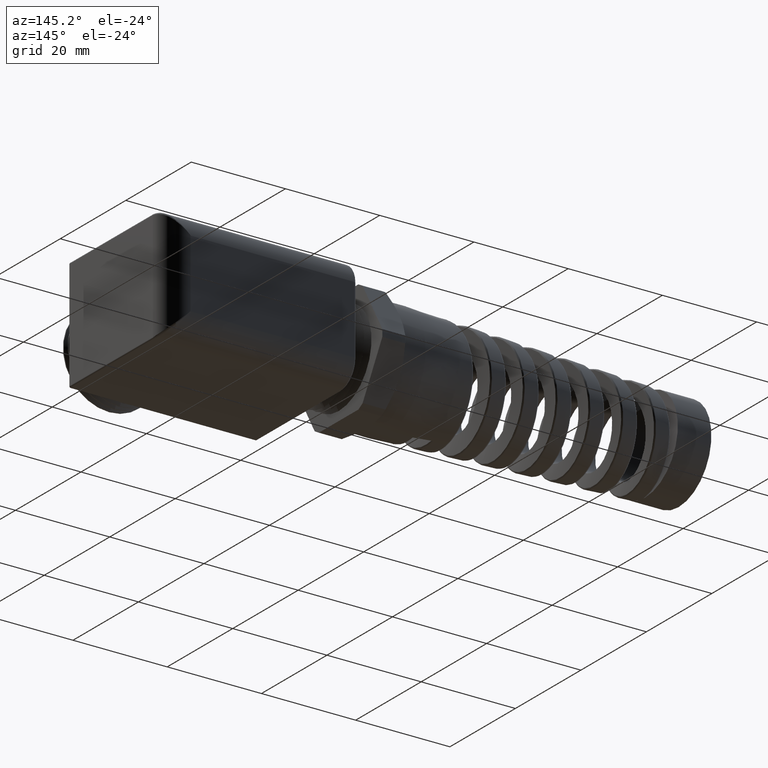
[diagram: clean part render]
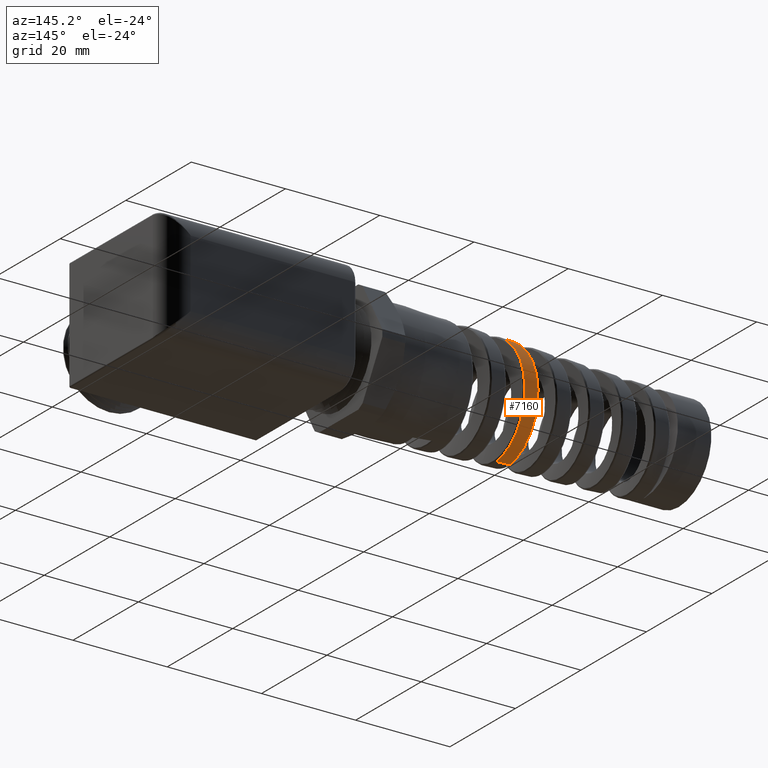
[diagram: same view with one face highlighted and labeled with its STEP entity id]
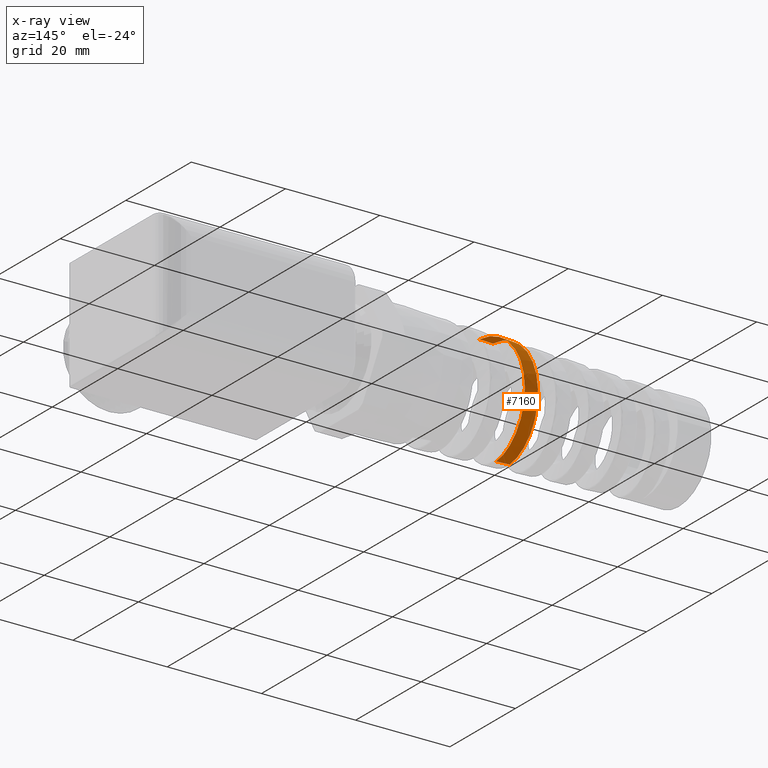
[diagram: x-ray of the same camera — body ghosted, the highlighted face saturated]
A machine part, auxiliary view. The second image highlights one B-rep face of the part: STEP entity #7160.
The next image is the same camera in x-ray: the body ghosted, the highlighted face saturated — about 0% of this face is hidden behind the body in this view.
In plain terms, the highlighted conical surface has half-angle 2 deg.
Its self-contained STEP definition (entity closure, byte-faithful):
#1283 = CARTESIAN_POINT ( 'NONE',  ( -1.588092709410913600, 5.378720768999652000E-013, -0.4380093376615970500 ) ) ;
#1292 = DIRECTION ( 'NONE',  ( 0.9993908270190959800, 0.0000000000000000000, -0.03489949670249403700 ) ) ;
#1294 = VECTOR ( 'NONE', #1292, 39.37007874015748100 ) ;
#1295 = CARTESIAN_POINT ( 'NONE',  ( -0.6720000000000001500, 0.0000000000000000000, -0.4699999999999998600 ) ) ;
#1296 = LINE ( 'NONE', #1295, #1294 ) ;
#1460 = DIRECTION ( 'NONE',  ( 0.9993908270190959800, 4.273955692856292900E-018, 0.03489949670249403700 ) ) ;
#1461 = VECTOR ( 'NONE', #1460, 39.37007874015748100 ) ;
#1462 = CARTESIAN_POINT ( 'NONE',  ( -0.6720000000000001500, 5.755839955992558400E-017, 0.4699999999999998600 ) ) ;
#1463 = LINE ( 'NONE', #1462, #1461 ) ;
#1515 = CARTESIAN_POINT ( 'NONE',  ( -1.463712311807373400, 0.1552565178672250800, 0.4144636440341080700 ) ) ;
#1516 = CARTESIAN_POINT ( 'NONE',  ( -1.462238519533112000, 0.1415092352155226900, 0.4194108301463539400 ) ) ;
#1517 = CARTESIAN_POINT ( 'NONE',  ( -1.459319529552696800, 0.1138700300372548900, 0.4278482514460242900 ) ) ;
#1518 = CARTESIAN_POINT ( 'NONE',  ( -1.457868361574803400, 0.09992558755380559500, 0.4313668249424997800 ) ) ;
#1519 = CARTESIAN_POINT ( 'NONE',  ( -1.453519321075634800, 0.05772761468592203800, 0.4398659536071123400 ) ) ;
#1520 = CARTESIAN_POINT ( 'NONE',  ( -1.450624854838777500, 0.02908960965713431100, 0.4428098209236349100 ) ) ;
#1521 = CARTESIAN_POINT ( 'NONE',  ( -1.447689744863806900, 3.730802169768455900E-016, 0.4429123172225035700 ) ) ;
#1522 = B_SPLINE_CURVE_WITH_KNOTS ( 'NONE', 3,
 ( #1521, #1520, #1519, #1518, #1517, #1516, #1515, #1589, #1587, #1586, #1585, #1584, #1583, #1582, #1581, #1580, #1579, #1578, #1577, #1576, #1575, #1574, #1573, #1572, #1571, #1570, #1568, #1567, #1566, #1565, #1564, #1563, #1562, #1561, #1560, #1559, #1558, #1557, #1556, #1555, #1554, #1553, #1552, #1551, #1550, #1549, #1548, #1547, #1546 ),
 .UNSPECIFIED., .F., .F.,
 ( 4, 2, 2, 2, 2, 2, 2, 2, 1, 2, 2, 2, 2, 2, 2, 2, 2, 2, 2, 2, 2, 2, 2, 2, 4 ),
 ( 0.1109009939866371600, 0.1131270918891602200, 0.1142401408404217400, 0.1153531897916832600, 0.1175792876942063100, 0.1198053855967293500, 0.1220314834992524000, 0.1231445324505139200, 0.1242575814017754400, 0.1253706303530369700, 0.1264836793042984900, 0.1287097772068215300, 0.1298228261580830500, 0.1309358751093445700, 0.1331619730118676100, 0.1342750219631291300, 0.1353880709143906500, 0.1376141688169136800, 0.1387272177681752300, 0.1398402667194367500, 0.1409533156706982700, 0.1420663646219597900, 0.1442924625244828300, 0.1454055114757443500, 0.1465185604270058700 ),
 .UNSPECIFIED. ) ;
#1523 = CARTESIAN_POINT ( 'NONE',  ( -1.701181390279759200, 1.537446131535684400E-014, -0.4340601939048510700 ) ) ;
#1534 = CARTESIAN_POINT ( 'NONE',  ( -1.560801279104852900, 6.419263063356603100E-013, 0.4389623754084148700 ) ) ;
#1535 = DIRECTION ( 'NONE',  ( 0.0000000000000000000, 0.0000000000000000000, -1.000000000000000000 ) ) ;
#1536 = DIRECTION ( 'NONE',  ( 1.000000000000000000, 0.0000000000000000000, 0.0000000000000000000 ) ) ;
#1537 = CARTESIAN_POINT ( 'NONE',  ( -0.6720000000000001500, 0.0000000000000000000, 0.0000000000000000000 ) ) ;
#1538 = AXIS2_PLACEMENT_3D ( 'NONE', #1537, #1536, #1535 ) ;
#1539 = CONICAL_SURFACE ( 'NONE', #1538, 0.4699999999999998600, 0.03490658503987965200 ) ;
#1540 = FACE_OUTER_BOUND ( 'NONE', #7159, .T. ) ;
#1546 = CARTESIAN_POINT ( 'NONE',  ( -1.588092709410913600, 5.378720768999652000E-013, -0.4380093376615970500 ) ) ;
#1547 = CARTESIAN_POINT ( 'NONE',  ( -1.586624911403534200, 0.01438895759954392900, -0.4380605942974556400 ) ) ;
#1548 = CARTESIAN_POINT ( 'NONE',  ( -1.585148241024467700, 0.02887321569402921000, -0.4374010894678137000 ) ) ;
#1549 = CARTESIAN_POINT ( 'NONE',  ( -1.582185861028949600, 0.05780023198654163400, -0.4346299157970378600 ) ) ;
#1550 = CARTESIAN_POINT ( 'NONE',  ( -1.580716784236192000, 0.07207995042872245000, -0.4325377556411199600 ) ) ;
#1551 = CARTESIAN_POINT ( 'NONE',  ( -1.576322670466081100, 0.1143834779095357500, -0.4242110398472936400 ) ) ;
#1552 = CARTESIAN_POINT ( 'NONE',  ( -1.573410670783935900, 0.1418766880781460700, -0.4159454806918621000 ) ) ;
#1553 = CARTESIAN_POINT ( 'NONE',  ( -1.568983381905114700, 0.1820221026006242900, -0.3993928776564845100 ) ) ;
#1554 = CARTESIAN_POINT ( 'NONE',  ( -1.567497025030396300, 0.1952221474768941800, -0.3931654469133575300 ) ) ;
#1555 = CARTESIAN_POINT ( 'NONE',  ( -1.564557322980199200, 0.2206709152139491300, -0.3795855503614689000 ) ) ;
#1556 = CARTESIAN_POINT ( 'NONE',  ( -1.563096143585945200, 0.2329962765656624100, -0.3722044125787523100 ) ) ;
#1557 = CARTESIAN_POINT ( 'NONE',  ( -1.560175242657037900, 0.2568607414540220500, -0.3562800746764421300 ) ) ;
#1558 = CARTESIAN_POINT ( 'NONE',  ( -1.558715762833587500, 0.2683998544032684100, -0.3477368443456952400 ) ) ;
#1559 = CARTESIAN_POINT ( 'NONE',  ( -1.555784763280461600, 0.2906811253092317900, -0.3294749786457608600 ) ) ;
#1560 = CARTESIAN_POINT ( 'NONE',  ( -1.554306039431470100, 0.3014728842881774800, -0.3197054146812358100 ) ) ;
#1561 = CARTESIAN_POINT ( 'NONE',  ( -1.549881898903662500, 0.3322326739814916400, -0.2889386482455379400 ) ) ;
#1562 = CARTESIAN_POINT ( 'NONE',  ( -1.546975525841695700, 0.3504298944449787400, -0.2667131497363045600 ) ) ;
#1563 = CARTESIAN_POINT ( 'NONE',  ( -1.542593349511021800, 0.3743586390963351000, -0.2308861901211114500 ) ) ;
#1564 = CARTESIAN_POINT ( 'NONE',  ( -1.541129013348637700, 0.3817696899217000200, -0.2185260927041856600 ) ) ;
#1565 = CARTESIAN_POINT ( 'NONE',  ( -1.538179554878402100, 0.3954283165423717600, -0.1929475883854826800 ) ) ;
#1566 = CARTESIAN_POINT ( 'NONE',  ( -1.536700290031082400, 0.4016409675974966800, -0.1797766396573127200 ) ) ;
#1567 = CARTESIAN_POINT ( 'NONE',  ( -1.532308916656999900, 0.4181391509640362000, -0.1398295872993473000 ) ) ;
#1568 = CARTESIAN_POINT ( 'NONE',  ( -1.529409531514278800, 0.4264466577566415900, -0.1123677585473787400 ) ) ;
#1570 = CARTESIAN_POINT ( 'NONE',  ( -1.525019637038786300, 0.4348603728882636800, -0.06993493170938371000 ) ) ;
#1571 = CARTESIAN_POINT ( 'NONE',  ( -1.523541185507525200, 0.4369911330095434000, -0.05550121579368975200 ) ) ;
#1572 = CARTESIAN_POINT ( 'NONE',  ( -1.520603143826524400, 0.4397957328770815700, -0.02667770723347292000 ) ) ;
#1573 = CARTESIAN_POINT ( 'NONE',  ( -1.519143991072793100, 0.4404794433501251200, -0.01229405548729336200 ) ) ;
#1574 = CARTESIAN_POINT ( 'NONE',  ( -1.514774055570546200, 0.4404304821909351100, 0.03077259429500527400 ) ) ;
#1575 = CARTESIAN_POINT ( 'NONE',  ( -1.511870592992348600, 0.4376177780756658800, 0.05937207882098886900 ) ) ;
#1576 = CARTESIAN_POINT ( 'NONE',  ( -1.507451122183997500, 0.4290868160292410400, 0.1020900747687372000 ) ) ;
#1577 = CARTESIAN_POINT ( 'NONE',  ( -1.505980929859204600, 0.4255395669740688600, 0.1161704599581217000 ) ) ;
#1578 = CARTESIAN_POINT ( 'NONE',  ( -1.503063184158798900, 0.4171530016499305800, 0.1437105570937752300 ) ) ;
#1579 = CARTESIAN_POINT ( 'NONE',  ( -1.500158219512576900, 0.4074549817247661300, 0.1707293739012927800 ) ) ;
#1580 = CARTESIAN_POINT ( 'NONE',  ( -1.497251317162995800, 0.3951622344037413700, 0.1967138487232017200 ) ) ;
#1581 = CARTESIAN_POINT ( 'NONE',  ( -1.494328994015031700, 0.3815492977218197200, 0.2221704718513150500 ) ) ;
#1582 = CARTESIAN_POINT ( 'NONE',  ( -1.492852385823045100, 0.3740368702018367900, 0.2346962749630716000 ) ) ;
#1583 = CARTESIAN_POINT ( 'NONE',  ( -1.488460413876284000, 0.3499124080155839900, 0.2707583959495710700 ) ) ;
#1584 = CARTESIAN_POINT ( 'NONE',  ( -1.485567741386668100, 0.3316887472496108400, 0.2929345478080548300 ) ) ;
#1585 = CARTESIAN_POINT ( 'NONE',  ( -1.479744838150252300, 0.2910457949375804300, 0.3336166165419309200 ) ) ;
#1586 = CARTESIAN_POINT ( 'NONE',  ( -1.476790927941663800, 0.2683788927200535500, 0.3522394773240634100 ) ) ;
#1587 = CARTESIAN_POINT ( 'NONE',  ( -1.470974150867645700, 0.2205529851230969000, 0.3842340730811806300 ) ) ;
#1589 = CARTESIAN_POINT ( 'NONE',  ( -1.468089407832387800, 0.1952658378266065900, 0.3978025275402201600 ) ) ;
#1640 = CARTESIAN_POINT ( 'NONE',  ( -1.655683249892146100, 0.3710339374222229600, -0.2287599888906746400 ) ) ;
#1641 = CARTESIAN_POINT ( 'NONE',  ( -1.660113579295473100, 0.3470376031301794000, -0.2646680404756678300 ) ) ;
#1642 = CARTESIAN_POINT ( 'NONE',  ( -1.663021562298663700, 0.3289382628693117100, -0.2866637615541223200 ) ) ;
#1643 = CARTESIAN_POINT ( 'NONE',  ( -1.667400804693832700, 0.2987495705536452100, -0.3168356341008091200 ) ) ;
#1644 = CARTESIAN_POINT ( 'NONE',  ( -1.668863415869335800, 0.2881763794887488600, -0.3264192289662958300 ) ) ;
#1645 = CARTESIAN_POINT ( 'NONE',  ( -1.671809402372640200, 0.2659837974199916200, -0.3446131566972722200 ) ) ;
#1646 = CARTESIAN_POINT ( 'NONE',  ( -1.673292919361514000, 0.2543573429901853600, -0.3532156146995096800 ) ) ;
#1647 = CARTESIAN_POINT ( 'NONE',  ( -1.677698541162772900, 0.2186728790898067300, -0.3769881920449049700 ) ) ;
#1648 = CARTESIAN_POINT ( 'NONE',  ( -1.680609602230815000, 0.1935747739690610600, -0.3903545112910212800 ) ) ;
#1649 = CARTESIAN_POINT ( 'NONE',  ( -1.685013778275408400, 0.1539766986008455400, -0.4066862818657990800 ) ) ;
#1650 = CARTESIAN_POINT ( 'NONE',  ( -1.686495750762560900, 0.1403797156125410300, -0.4115261112988044500 ) ) ;
#1651 = CARTESIAN_POINT ( 'NONE',  ( -1.689450890766402500, 0.1128574700444569100, -0.4198019946956496600 ) ) ;
#1652 = CARTESIAN_POINT ( 'NONE',  ( -1.690917797025825100, 0.09899116023511446400, -0.4232290860116116300 ) ) ;
#1653 = CARTESIAN_POINT ( 'NONE',  ( -1.695308557657398300, 0.05708760081054024800, -0.4314367518727165200 ) ) ;
#1654 = CARTESIAN_POINT ( 'NONE',  ( -1.698222080592570700, 0.02874858353821511900, -0.4341635352762910900 ) ) ;
#1655 = CARTESIAN_POINT ( 'NONE',  ( -1.701181390279759200, 1.537446131535684400E-014, -0.4340601939048510700 ) ) ;
#1657 = B_SPLINE_CURVE_WITH_KNOTS ( 'NONE', 3,
 ( #1655, #1654, #1653, #1652, #1651, #1650, #1649, #1648, #1647, #1646, #1645, #1644, #1643, #1642, #1641, #1640, #1711, #1710, #1709, #1708, #1707, #1706, #1705, #1704, #1703, #1702, #1701, #1700, #1699, #1698, #1697, #1696, #1695, #1694, #1693, #1692, #1691, #1690, #1689, #1688, #1687, #1686, #1685, #1684, #1683, #1682, #1681 ),
 .UNSPECIFIED., .F., .F.,
 ( 4, 2, 2, 2, 2, 2, 2, 2, 2, 1, 2, 2, 2, 2, 2, 2, 2, 2, 2, 2, 2, 2, 2, 4 ),
 ( 0.2698481716368422700, 0.2720553764473659400, 0.2731589788526278000, 0.2742625812578896000, 0.2764697860684132700, 0.2775733884736751300, 0.2786769908789369400, 0.2808841956894606000, 0.2819877980947224100, 0.2830914004999842700, 0.2841950029052460700, 0.2852986053105079400, 0.2875058101210316000, 0.2897130149315552700, 0.2919202197420789300, 0.2930238221473408000, 0.2941274245526026000, 0.2963346293631262700, 0.2985418341736499300, 0.2996454365789117900, 0.3007490389841736000, 0.3029562437946972700, 0.3040598461999591300, 0.3051634486052209300 ),
 .UNSPECIFIED. ) ;
#1658 = CARTESIAN_POINT ( 'NONE',  ( -1.447689744863806900, 3.730802169768455900E-016, 0.4429123172225035700 ) ) ;
#1681 = CARTESIAN_POINT ( 'NONE',  ( -1.560801279104852900, 6.419263063356603100E-013, 0.4389623754084148700 ) ) ;
#1682 = CARTESIAN_POINT ( 'NONE',  ( -1.562251202224424400, 0.01423942184060841700, 0.4389117429773545800 ) ) ;
#1683 = CARTESIAN_POINT ( 'NONE',  ( -1.563705726692017800, 0.02851501993513385800, 0.4381698088232021100 ) ) ;
#1684 = CARTESIAN_POINT ( 'NONE',  ( -1.566637534276968900, 0.05713948706925348800, 0.4352598249320479000 ) ) ;
#1685 = CARTESIAN_POINT ( 'NONE',  ( -1.568103774175583400, 0.07137911197613772100, 0.4330967567248476000 ) ) ;
#1686 = CARTESIAN_POINT ( 'NONE',  ( -1.572464903185126600, 0.1133401528807579800, 0.4246163686380687300 ) ) ;
#1687 = CARTESIAN_POINT ( 'NONE',  ( -1.575348515656355800, 0.1405357169816624000, 0.4163050884246340400 ) ) ;
#1688 = CARTESIAN_POINT ( 'NONE',  ( -1.579719741946381300, 0.1801450708140282200, 0.3998257773883697700 ) ) ;
#1689 = CARTESIAN_POINT ( 'NONE',  ( -1.581192573488487300, 0.1932175775255208500, 0.3936190315447284400 ) ) ;
#1690 = CARTESIAN_POINT ( 'NONE',  ( -1.584115988081965700, 0.2184890325041513300, 0.3800553213190336900 ) ) ;
#1691 = CARTESIAN_POINT ( 'NONE',  ( -1.585568738609530500, 0.2307112947922936300, 0.3726983440294891500 ) ) ;
#1692 = CARTESIAN_POINT ( 'NONE',  ( -1.589921887181169800, 0.2661650738602333000, 0.3489438537910862200 ) ) ;
#1693 = CARTESIAN_POINT ( 'NONE',  ( -1.592817282675728800, 0.2881951801263533100, 0.3308788876381857400 ) ) ;
#1694 = CARTESIAN_POINT ( 'NONE',  ( -1.598701096463800200, 0.3289122899675797100, 0.2901277691980173600 ) ) ;
#1695 = CARTESIAN_POINT ( 'NONE',  ( -1.601606730328471100, 0.3470234176755536700, 0.2679971981980942000 ) ) ;
#1696 = CARTESIAN_POINT ( 'NONE',  ( -1.605963025470135800, 0.3707260845719501700, 0.2325301141640910300 ) ) ;
#1697 = CARTESIAN_POINT ( 'NONE',  ( -1.607416364855702900, 0.3780588645132331200, 0.2203130397939478100 ) ) ;
#1698 = CARTESIAN_POINT ( 'NONE',  ( -1.610339954598301300, 0.3915646145743951200, 0.1950748705200592000 ) ) ;
#1699 = CARTESIAN_POINT ( 'NONE',  ( -1.611817298384151400, 0.3977597871500040400, 0.1819876180654556300 ) ) ;
#1700 = CARTESIAN_POINT ( 'NONE',  ( -1.616209371919816700, 0.4142100214473223300, 0.1422815443099201500 ) ) ;
#1701 = CARTESIAN_POINT ( 'NONE',  ( -1.619104919963688900, 0.4224666811164410900, 0.1150613700200371300 ) ) ;
#1702 = CARTESIAN_POINT ( 'NONE',  ( -1.624940595028675700, 0.4336356749748515000, 0.05915470613957858600 ) ) ;
#1703 = CARTESIAN_POINT ( 'NONE',  ( -1.627902692629553200, 0.4365037530059729400, 0.03021975367228941400 ) ) ;
#1704 = CARTESIAN_POINT ( 'NONE',  ( -1.633737743561462000, 0.4365240257634005500, -0.02678883007050666300 ) ) ;
#1705 = CARTESIAN_POINT ( 'NONE',  ( -1.636634924348806300, 0.4337685674592944900, -0.05510078162353462100 ) ) ;
#1706 = CARTESIAN_POINT ( 'NONE',  ( -1.641036128190565200, 0.4254180506351057900, -0.09726648962420331200 ) ) ;
#1707 = CARTESIAN_POINT ( 'NONE',  ( -1.642517251524303600, 0.4219064562190963900, -0.1113130467980246500 ) ) ;
#1708 = CARTESIAN_POINT ( 'NONE',  ( -1.645449840464525500, 0.4136036757345750700, -0.1387023424681777500 ) ) ;
#1709 = CARTESIAN_POINT ( 'NONE',  ( -1.648367443191750300, 0.4040024030732155500, -0.1655305082629787200 ) ) ;
#1710 = CARTESIAN_POINT ( 'NONE',  ( -1.651282892535129700, 0.3918534057262769200, -0.1912546411945098300 ) ) ;
#1711 = CARTESIAN_POINT ( 'NONE',  ( -1.654209950590941800, 0.3784186297574671500, -0.2164201682153634500 ) ) ;
#7096 = VERTEX_POINT ( 'NONE', #1283 ) ;
#7107 = EDGE_CURVE ( 'NONE', #7166, #7096, #1296, .T. ) ;
#7120 = ORIENTED_EDGE ( 'NONE', *, *, #7107, .F. ) ;
#7121 = ORIENTED_EDGE ( 'NONE', *, *, #7176, .T. ) ;
#7125 = ORIENTED_EDGE ( 'NONE', *, *, #7126, .T. ) ;
#7126 = EDGE_CURVE ( 'NONE', #7161, #7177, #1463, .T. ) ;
#7159 = EDGE_LOOP ( 'NONE', ( #7121, #7125, #7167, #7120 ) ) ;
#7160 = ADVANCED_FACE ( 'NONE', ( #1540 ), #1539, .T. ) ;
#7161 = VERTEX_POINT ( 'NONE', #1534 ) ;
#7166 = VERTEX_POINT ( 'NONE', #1523 ) ;
#7167 = ORIENTED_EDGE ( 'NONE', *, *, #7168, .T. ) ;
#7168 = EDGE_CURVE ( 'NONE', #7177, #7096, #1522, .T. ) ;
#7176 = EDGE_CURVE ( 'NONE', #7166, #7161, #1657, .T. ) ;
#7177 = VERTEX_POINT ( 'NONE', #1658 ) ;